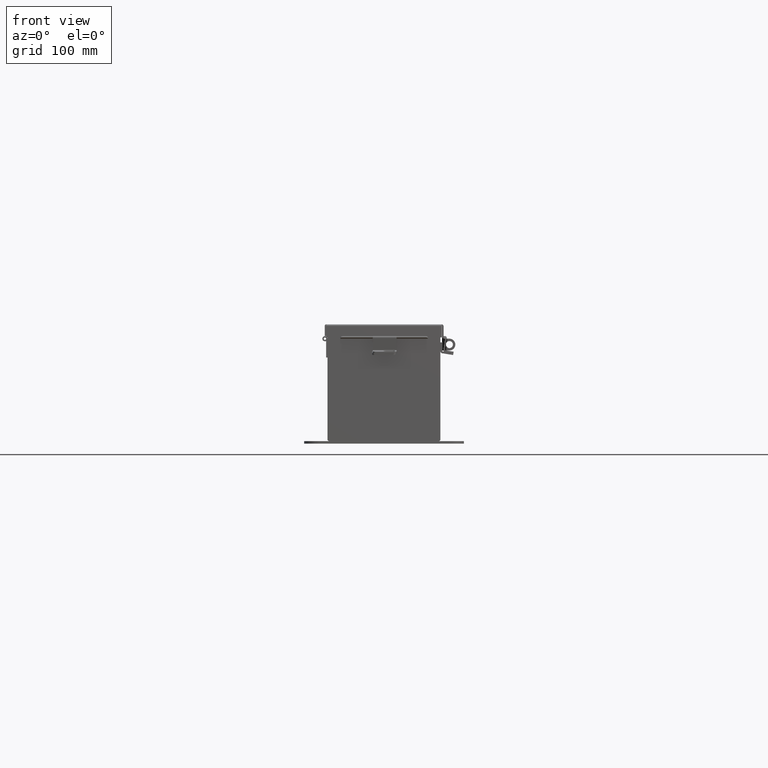
[diagram: clean part render]
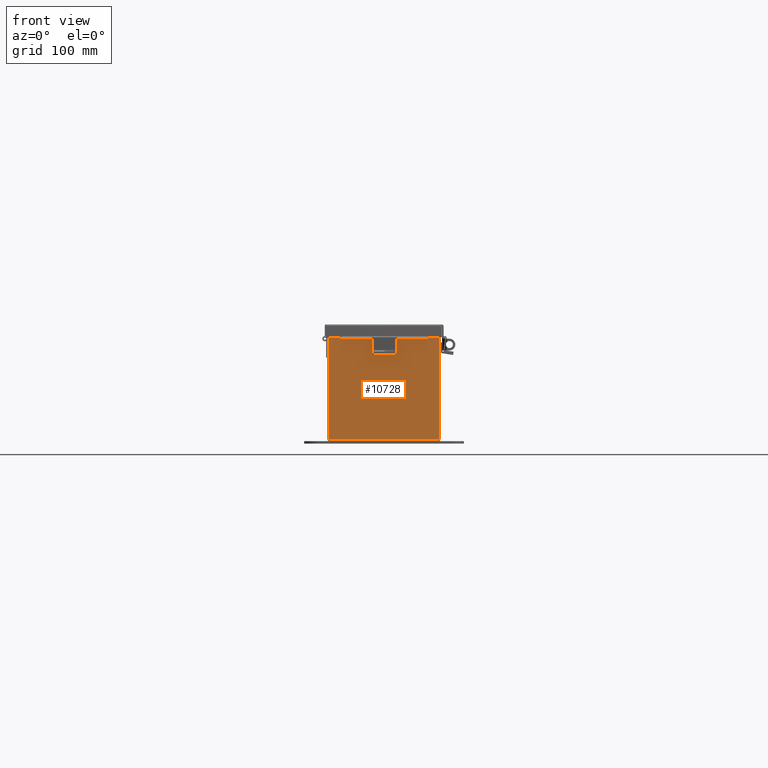
[diagram: same view with one face highlighted and labeled with its STEP entity id]
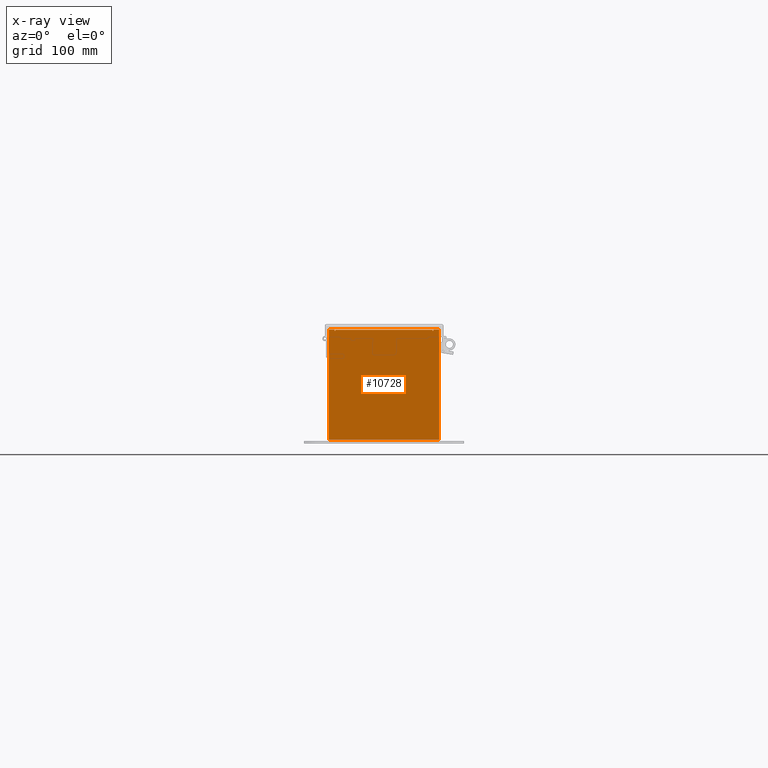
[diagram: x-ray of the same camera — body ghosted, the highlighted face saturated]
A machine part, front view. The second image highlights one B-rep face of the part: STEP entity #10728.
The next image is the same camera in x-ray: the body ghosted, the highlighted face saturated — about 0% of this face is hidden behind the body in this view.
In plain terms, the highlighted planar face has unit normal (-0, 1, -0).
Its self-contained STEP definition (entity closure, byte-faithful):
#71 = LINE ( 'NONE', #16163, #4672 ) ;
#82 = CARTESIAN_POINT ( 'NONE',  ( 0.0000000000000000000, 0.0000000000000000000, 0.0000000000000000000 ) ) ;
#99 = DIRECTION ( 'NONE',  ( -1.000000000000000000, -6.758929349753429700E-031, 0.0000000000000000000 ) ) ;
#163 = ORIENTED_EDGE ( 'NONE', *, *, #8445, .T. ) ;
#452 = ORIENTED_EDGE ( 'NONE', *, *, #24738, .F. ) ;
#618 = VECTOR ( 'NONE', #7294, 39.37007874015748100 ) ;
#664 = CARTESIAN_POINT ( 'NONE',  ( 2.600975000000001800, 0.0000000000000000000, 2.874949999999998300 ) ) ;
#808 = VECTOR ( 'NONE', #20369, 39.37007874015748100 ) ;
#822 = EDGE_CURVE ( 'NONE', #20486, #6255, #11625, .T. ) ;
#1301 = ORIENTED_EDGE ( 'NONE', *, *, #2806, .T. ) ;
#1386 = CARTESIAN_POINT ( 'NONE',  ( 2.619650000000001800, 0.0000000000000000000, 2.925299999999999600 ) ) ;
#1477 = VECTOR ( 'NONE', #5084, 39.37007874015748100 ) ;
#1588 = CARTESIAN_POINT ( 'NONE',  ( -2.582299999999998300, 2.185478394931410600E-015, 2.912299999999999200 ) ) ;
#1657 = CARTESIAN_POINT ( 'NONE',  ( -2.619649999999998300, 0.0000000000000000000, 0.0000000000000000000 ) ) ;
#2327 = AXIS2_PLACEMENT_3D ( 'NONE', #82, #27426, #13862 ) ;
#2545 = DIRECTION ( 'NONE',  ( 0.0000000000000000000, 0.0000000000000000000, -1.000000000000000000 ) ) ;
#2636 = EDGE_CURVE ( 'NONE', #21697, #23585, #24981, .T. ) ;
#2806 = EDGE_CURVE ( 'NONE', #21697, #6255, #20755, .T. ) ;
#2945 = DIRECTION ( 'NONE',  ( 0.0000000000000000000, 0.0000000000000000000, -1.000000000000000000 ) ) ;
#3187 = VERTEX_POINT ( 'NONE', #26654 ) ;
#3539 = EDGE_CURVE ( 'NONE', #23585, #4719, #4289, .T. ) ;
#3587 = LINE ( 'NONE', #28162, #27082 ) ;
#3951 = DIRECTION ( 'NONE',  ( 0.0000000000000000000, 0.0000000000000000000, 1.000000000000000000 ) ) ;
#4289 = CIRCLE ( 'NONE', #7240, 0.01867500000000003900 ) ;
#4366 = DIRECTION ( 'NONE',  ( 0.0000000000000000000, 0.0000000000000000000, 1.000000000000000000 ) ) ;
#4542 = VERTEX_POINT ( 'NONE', #1386 ) ;
#4563 = CARTESIAN_POINT ( 'NONE',  ( -2.582299999999998300, 0.0000000000000000000, 2.874949999999998300 ) ) ;
#4672 = VECTOR ( 'NONE', #2545, 39.37007874015748100 ) ;
#4697 = CARTESIAN_POINT ( 'NONE',  ( 2.582300000000001400, 0.0000000000000000000, 0.0000000000000000000 ) ) ;
#4719 = VERTEX_POINT ( 'NONE', #28341 ) ;
#5084 = DIRECTION ( 'NONE',  ( 0.0000000000000000000, 0.0000000000000000000, -1.000000000000000000 ) ) ;
#5422 = LINE ( 'NONE', #29409, #808 ) ;
#6255 = VERTEX_POINT ( 'NONE', #8447 ) ;
#6449 = EDGE_CURVE ( 'NONE', #4542, #28712, #3587, .T. ) ;
#6819 = CARTESIAN_POINT ( 'NONE',  ( -2.619649999999998300, 0.0000000000000000000, 2.925299999999999600 ) ) ;
#7171 = EDGE_CURVE ( 'NONE', #12470, #11167, #9976, .T. ) ;
#7240 = AXIS2_PLACEMENT_3D ( 'NONE', #24737, #10357, #16961 ) ;
#7294 = DIRECTION ( 'NONE',  ( 1.000000000000000000, 6.758929349753429700E-031, 0.0000000000000000000 ) ) ;
#7490 = ORIENTED_EDGE ( 'NONE', *, *, #7171, .T. ) ;
#7723 = ORIENTED_EDGE ( 'NONE', *, *, #26584, .T. ) ;
#8445 = EDGE_CURVE ( 'NONE', #3187, #29391, #24110, .T. ) ;
#8447 = CARTESIAN_POINT ( 'NONE',  ( 2.582300000000001400, 0.0000000000000000000, 2.912299999999999200 ) ) ;
#8632 = CARTESIAN_POINT ( 'NONE',  ( -2.925300000000004500, 0.0000000000000000000, -2.925299999999994700 ) ) ;
#9273 = VECTOR ( 'NONE', #99, 39.37007874015748100 ) ;
#9307 = EDGE_LOOP ( 'NONE', ( #13559, #21280, #13883, #1301, #21601, #452, #10365, #22033, #7723, #7490, #23345, #163 ) ) ;
#9976 = LINE ( 'NONE', #16850, #9273 ) ;
#10357 = DIRECTION ( 'NONE',  ( 6.758929349753428800E-031, 1.000000000000000000, -0.0000000000000000000 ) ) ;
#10365 = ORIENTED_EDGE ( 'NONE', *, *, #28269, .F. ) ;
#10728 = ADVANCED_FACE ( 'NONE', ( #14476 ), #11565, .F. ) ;
#11167 = VERTEX_POINT ( 'NONE', #8632 ) ;
#11565 = PLANE ( 'NONE',  #2327 ) ;
#11625 = LINE ( 'NONE', #4697, #18410 ) ;
#12470 = VERTEX_POINT ( 'NONE', #29268 ) ;
#12937 = VECTOR ( 'NONE', #3951, 39.37007874015748100 ) ;
#13559 = ORIENTED_EDGE ( 'NONE', *, *, #23921, .F. ) ;
#13862 = DIRECTION ( 'NONE',  ( 0.0000000000000000000, 0.0000000000000000000, -1.000000000000000000 ) ) ;
#13883 = ORIENTED_EDGE ( 'NONE', *, *, #2636, .F. ) ;
#14188 = VERTEX_POINT ( 'NONE', #23534 ) ;
#14476 = FACE_OUTER_BOUND ( 'NONE', #9307, .T. ) ;
#14715 = VECTOR ( 'NONE', #28827, 39.37007874015748100 ) ;
#15027 = CIRCLE ( 'NONE', #16633, 0.01867500000000003900 ) ;
#15894 = DIRECTION ( 'NONE',  ( -1.085143195099989400E-014, 0.0000000000000000000, -1.000000000000000000 ) ) ;
#16085 = LINE ( 'NONE', #22712, #28806 ) ;
#16163 = CARTESIAN_POINT ( 'NONE',  ( 2.925300000000001800, 0.0000000000000000000, 2.925299999999999600 ) ) ;
#16633 = AXIS2_PLACEMENT_3D ( 'NONE', #664, #16654, #2945 ) ;
#16654 = DIRECTION ( 'NONE',  ( 6.758929349753428800E-031, 1.000000000000000000, -0.0000000000000000000 ) ) ;
#16850 = CARTESIAN_POINT ( 'NONE',  ( -2.925300000000004500, 0.0000000000000000000, -2.925299999999994700 ) ) ;
#16961 = DIRECTION ( 'NONE',  ( 0.0000000000000000000, 0.0000000000000000000, -1.000000000000000000 ) ) ;
#17637 = EDGE_CURVE ( 'NONE', #11167, #3187, #5422, .T. ) ;
#17646 = CARTESIAN_POINT ( 'NONE',  ( 2.582300000000001400, 0.0000000000000000000, 2.874949999999998300 ) ) ;
#18410 = VECTOR ( 'NONE', #4366, 39.37007874015748100 ) ;
#20369 = DIRECTION ( 'NONE',  ( 0.0000000000000000000, 0.0000000000000000000, 1.000000000000000000 ) ) ;
#20486 = VERTEX_POINT ( 'NONE', #17646 ) ;
#20755 = LINE ( 'NONE', #1588, #14715 ) ;
#20820 = CARTESIAN_POINT ( 'NONE',  ( -2.925299999999998200, 0.0000000000000000000, 2.925299999999999600 ) ) ;
#21280 = ORIENTED_EDGE ( 'NONE', *, *, #3539, .F. ) ;
#21601 = ORIENTED_EDGE ( 'NONE', *, *, #822, .F. ) ;
#21697 = VERTEX_POINT ( 'NONE', #22424 ) ;
#22033 = ORIENTED_EDGE ( 'NONE', *, *, #6449, .T. ) ;
#22100 = CARTESIAN_POINT ( 'NONE',  ( 2.925300000000001800, 0.0000000000000000000, 2.925299999999999600 ) ) ;
#22424 = CARTESIAN_POINT ( 'NONE',  ( -2.582299999999998300, 2.185478394931410600E-015, 2.912299999999999200 ) ) ;
#22712 = CARTESIAN_POINT ( 'NONE',  ( 2.619649999999970700, 0.0000000000000000000, -2.294752314677981200E-014 ) ) ;
#23345 = ORIENTED_EDGE ( 'NONE', *, *, #17637, .T. ) ;
#23534 = CARTESIAN_POINT ( 'NONE',  ( 2.619650000000001800, 0.0000000000000000000, 2.874950000000000600 ) ) ;
#23585 = VERTEX_POINT ( 'NONE', #4563 ) ;
#23921 = EDGE_CURVE ( 'NONE', #4719, #29391, #24986, .T. ) ;
#24110 = LINE ( 'NONE', #20820, #618 ) ;
#24737 = CARTESIAN_POINT ( 'NONE',  ( -2.600974999999998300, 0.0000000000000000000, 2.874949999999998300 ) ) ;
#24738 = EDGE_CURVE ( 'NONE', #14188, #20486, #15027, .T. ) ;
#24981 = LINE ( 'NONE', #27057, #1477 ) ;
#24986 = LINE ( 'NONE', #1657, #12937 ) ;
#26584 = EDGE_CURVE ( 'NONE', #28712, #12470, #71, .T. ) ;
#26654 = CARTESIAN_POINT ( 'NONE',  ( -2.925299999999998200, 0.0000000000000000000, 2.925299999999999600 ) ) ;
#27057 = CARTESIAN_POINT ( 'NONE',  ( -2.582299999999998300, 0.0000000000000000000, 0.0000000000000000000 ) ) ;
#27082 = VECTOR ( 'NONE', #28029, 39.37007874015748100 ) ;
#27426 = DIRECTION ( 'NONE',  ( -6.758929349753429700E-031, -1.000000000000000000, -0.0000000000000000000 ) ) ;
#28029 = DIRECTION ( 'NONE',  ( 1.000000000000000000, 6.758929349753429700E-031, 0.0000000000000000000 ) ) ;
#28162 = CARTESIAN_POINT ( 'NONE',  ( -2.925299999999998200, 0.0000000000000000000, 2.925299999999999600 ) ) ;
#28269 = EDGE_CURVE ( 'NONE', #4542, #14188, #16085, .T. ) ;
#28341 = CARTESIAN_POINT ( 'NONE',  ( -2.619649999999998300, 0.0000000000000000000, 2.874949999999998300 ) ) ;
#28712 = VERTEX_POINT ( 'NONE', #22100 ) ;
#28806 = VECTOR ( 'NONE', #15894, 39.37007874015748100 ) ;
#28827 = DIRECTION ( 'NONE',  ( 1.000000000000000000, 6.758929349753429700E-031, -0.0000000000000000000 ) ) ;
#29268 = CARTESIAN_POINT ( 'NONE',  ( 2.925299999999995600, 0.0000000000000000000, -2.925300000000000500 ) ) ;
#29391 = VERTEX_POINT ( 'NONE', #6819 ) ;
#29409 = CARTESIAN_POINT ( 'NONE',  ( -2.925299999999998200, 0.0000000000000000000, 2.925299999999999600 ) ) ;